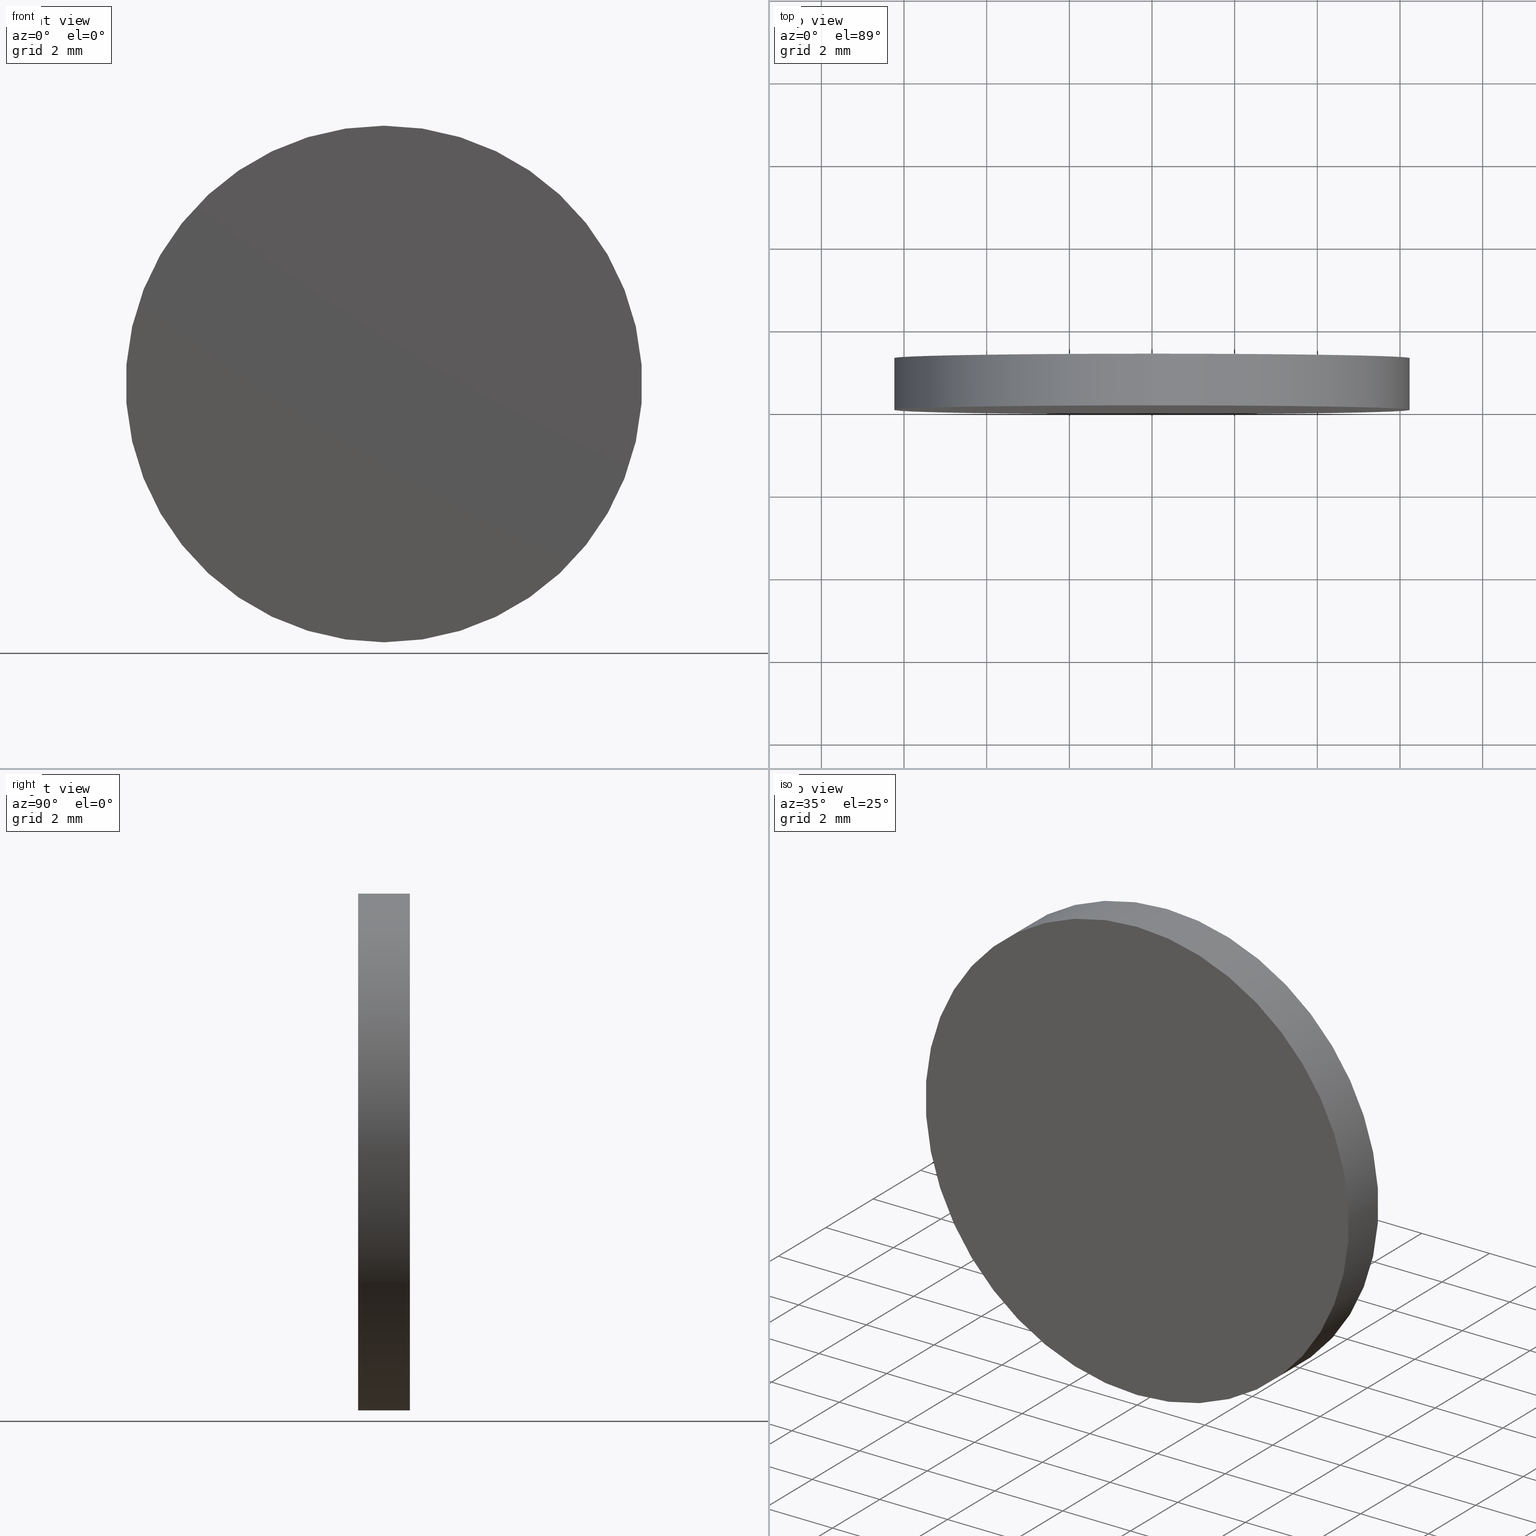
[diagram: canonical four-view strip — front | top / right | iso, engineering-drawing reading convention]
A machine part, canonical four-view strip (front | top / right | iso — engineering-drawing reading convention). The complete STEP part file that produces these views, byte-faithful:
ISO-10303-21;
HEADER;
FILE_DESCRIPTION (( 'STEP AP214' ),
    '1' );
FILE_NAME ('248577.STEP',
    '2019-08-02T08:44:44',
    ( 'user' ),
    ( '΢���й�' ),
    'SwSTEP 2.0',
    'SolidWorks 2016',
    '' );
FILE_SCHEMA (( 'AUTOMOTIVE_DESIGN' ));
ENDSEC;

DATA;
#1 = PRODUCT_DEFINITION ( 'δ֪', '', #97, #43 ) ;
#2 = AXIS2_PLACEMENT_3D ( 'NONE', #27, #109, #19 ) ;
#3 = CARTESIAN_POINT ( 'NONE',  ( 0.0000000000000000000, 0.0000000000000000000, 0.0000000000000000000 ) ) ;
#4 = EDGE_CURVE ( 'NONE', #65, #38, #66, .T. ) ;
#5 = CIRCLE ( 'NONE', #10, 6.250000000000000000 ) ;
#6 = CARTESIAN_POINT ( 'NONE',  ( 0.0000000000000000000, 0.0000000000000000000, 0.0000000000000000000 ) ) ;
#7 = DIRECTION ( 'NONE',  ( 0.0000000000000000000, 0.0000000000000000000, 1.000000000000000000 ) ) ;
#8 = SURFACE_STYLE_USAGE ( .BOTH. , #76 ) ;
#9 = ADVANCED_FACE ( 'NONE', ( #71 ), #44, .T. ) ;
#10 = AXIS2_PLACEMENT_3D ( 'NONE', #138, #75, #7 ) ;
#11 = ORIENTED_EDGE ( 'NONE', *, *, #4, .F. ) ;
#12 = LINE ( 'NONE', #101, #53 ) ;
#13 =( NAMED_UNIT ( * ) SI_UNIT ( $, .STERADIAN. ) SOLID_ANGLE_UNIT ( ) );
#14 = SURFACE_STYLE_USAGE ( .BOTH. , #80 ) ;
#15 = DIRECTION ( 'NONE',  ( -0.0000000000000000000, -1.000000000000000000, -0.0000000000000000000 ) ) ;
#16 = CARTESIAN_POINT ( 'NONE',  ( 7.654042494670957600E-016, 1.250000000000000000, 6.250000000000000000 ) ) ;
#17 = UNCERTAINTY_MEASURE_WITH_UNIT (LENGTH_MEASURE( 1.000000000000000100E-005 ), #87, 'distance_accuracy_value', 'NONE');
#18 = APPLICATION_PROTOCOL_DEFINITION ( 'draft international standard', 'automotive_design', 1998, #61 ) ;
#19 = DIRECTION ( 'NONE',  ( 0.0000000000000000000, 0.0000000000000000000, 1.000000000000000000 ) ) ;
#20 =( NAMED_UNIT ( * ) PLANE_ANGLE_UNIT ( ) SI_UNIT ( $, .RADIAN. ) );
#21 = STYLED_ITEM ( 'NONE', ( #50 ), #25 ) ;
#22 = VERTEX_POINT ( 'NONE', #81 ) ;
#23 = AXIS2_PLACEMENT_3D ( 'NONE', #117, #118, #24 ) ;
#24 = DIRECTION ( 'NONE',  ( 0.0000000000000000000, 0.0000000000000000000, -1.000000000000000000 ) ) ;
#25 = ADVANCED_BREP_SHAPE_REPRESENTATION ( '248577', ( #98, #33 ), #108 ) ;
#26 = DIRECTION ( 'NONE',  ( 0.0000000000000000000, 1.000000000000000000, 0.0000000000000000000 ) ) ;
#27 = CARTESIAN_POINT ( 'NONE',  ( 0.0000000000000000000, 1.250000000000000000, 0.0000000000000000000 ) ) ;
#28 =( LENGTH_UNIT ( ) NAMED_UNIT ( * ) SI_UNIT ( .MILLI., .METRE. ) );
#29 = MECHANICAL_DESIGN_GEOMETRIC_PRESENTATION_REPRESENTATION (  '', ( #21 ), #91 ) ;
#30 = AXIS2_PLACEMENT_3D ( 'NONE', #52, #127, #120 ) ;
#31 = VECTOR ( 'NONE', #125, 1000.000000000000000 ) ;
#32 = EDGE_LOOP ( 'NONE', ( #82, #133, #67, #103 ) ) ;
#33 = AXIS2_PLACEMENT_3D ( 'NONE', #6, #112, #74 ) ;
#34 = EDGE_CURVE ( 'NONE', #38, #65, #77, .T. ) ;
#35 = PLANE ( 'NONE',  #37 ) ;
#36 = FILL_AREA_STYLE_COLOUR ( '', #92 ) ;
#37 = AXIS2_PLACEMENT_3D ( 'NONE', #99, #26, #79 ) ;
#38 = VERTEX_POINT ( 'NONE', #119 ) ;
#39 =( NAMED_UNIT ( * ) SI_UNIT ( $, .STERADIAN. ) SOLID_ANGLE_UNIT ( ) );
#40 = CIRCLE ( 'NONE', #2, 6.250000000000000000 ) ;
#41 = ORIENTED_EDGE ( 'NONE', *, *, #42, .T. ) ;
#42 = EDGE_CURVE ( 'NONE', #22, #65, #90, .T. ) ;
#43 = PRODUCT_DEFINITION_CONTEXT ( 'detailed design', #61, 'design' ) ;
#44 = CYLINDRICAL_SURFACE ( 'NONE', #89, 6.250000000000000000 ) ;
#45 = EDGE_CURVE ( 'NONE', #22, #106, #40, .T. ) ;
#46 = FACE_OUTER_BOUND ( 'NONE', #114, .T. ) ;
#47 = MECHANICAL_DESIGN_GEOMETRIC_PRESENTATION_REPRESENTATION (  '', ( #68 ), #84 ) ;
#48 = PRODUCT ( '248577', '248577', '', ( #137 ) ) ;
#49 = DIRECTION ( 'NONE',  ( 0.0000000000000000000, 0.0000000000000000000, 1.000000000000000000 ) ) ;
#50 = PRESENTATION_STYLE_ASSIGNMENT (( #8 ) ) ;
#51 = AXIS2_PLACEMENT_3D ( 'NONE', #3, #73, #134 ) ;
#52 = CARTESIAN_POINT ( 'NONE',  ( 0.0000000000000000000, 1.250000000000000000, 0.0000000000000000000 ) ) ;
#53 = VECTOR ( 'NONE', #15, 1000.000000000000000 ) ;
#54 = APPLICATION_PROTOCOL_DEFINITION ( 'draft international standard', 'automotive_design', 1998, #64 ) ;
#55 = ORIENTED_EDGE ( 'NONE', *, *, #34, .F. ) ;
#56 = AXIS2_PLACEMENT_3D ( 'NONE', #60, #126, #49 ) ;
#57 = PRESENTATION_STYLE_ASSIGNMENT (( #14 ) ) ;
#58 = FILL_AREA_STYLE ('',( #36 ) ) ;
#59 = CARTESIAN_POINT ( 'NONE',  ( 7.654042494670957600E-016, 0.0000000000000000000, 6.250000000000000000 ) ) ;
#60 = CARTESIAN_POINT ( 'NONE',  ( 0.0000000000000000000, 0.0000000000000000000, 0.0000000000000000000 ) ) ;
#61 = APPLICATION_CONTEXT ( 'automotive_design' ) ;
#62 = CLOSED_SHELL ( 'NONE', ( #104, #9, #128, #88 ) ) ;
#63 = CARTESIAN_POINT ( 'NONE',  ( 0.0000000000000000000, 1.250000000000000000, -6.250000000000000000 ) ) ;
#64 = APPLICATION_CONTEXT ( 'automotive_design' ) ;
#65 = VERTEX_POINT ( 'NONE', #59 ) ;
#66 = CIRCLE ( 'NONE', #56, 6.250000000000000000 ) ;
#67 = ORIENTED_EDGE ( 'NONE', *, *, #132, .T. ) ;
#68 = STYLED_ITEM ( 'NONE', ( #57 ), #98 ) ;
#69 = COLOUR_RGB ( '',1.000000000000000000, 1.000000000000000000, 1.000000000000000000 ) ;
#70 = FACE_OUTER_BOUND ( 'NONE', #129, .T. ) ;
#71 = FACE_OUTER_BOUND ( 'NONE', #32, .T. ) ;
#72 = PRESENTATION_LAYER_ASSIGNMENT (  '', '', ( #21 ) ) ;
#73 = DIRECTION ( 'NONE',  ( 0.0000000000000000000, 1.000000000000000000, 0.0000000000000000000 ) ) ;
#74 = DIRECTION ( 'NONE',  ( 1.000000000000000000, 0.0000000000000000000, 0.0000000000000000000 ) ) ;
#75 = DIRECTION ( 'NONE',  ( 0.0000000000000000000, 1.000000000000000000, 0.0000000000000000000 ) ) ;
#76 = SURFACE_SIDE_STYLE ('',( #135 ) ) ;
#77 = CIRCLE ( 'NONE', #51, 6.250000000000000000 ) ;
#78 = UNCERTAINTY_MEASURE_WITH_UNIT (LENGTH_MEASURE( 1.000000000000000100E-005 ), #95, 'distance_accuracy_value', 'NONE');
#79 = DIRECTION ( 'NONE',  ( 0.0000000000000000000, -0.0000000000000000000, 1.000000000000000000 ) ) ;
#80 = SURFACE_SIDE_STYLE ('',( #110 ) ) ;
#81 = CARTESIAN_POINT ( 'NONE',  ( 7.654042494670957600E-016, 1.250000000000000000, 6.250000000000000000 ) ) ;
#82 = ORIENTED_EDGE ( 'NONE', *, *, #42, .F. ) ;
#83 = DIRECTION ( 'NONE',  ( -0.0000000000000000000, -1.000000000000000000, -0.0000000000000000000 ) ) ;
#84 =( GEOMETRIC_REPRESENTATION_CONTEXT ( 3 ) GLOBAL_UNCERTAINTY_ASSIGNED_CONTEXT ( ( #78 ) ) GLOBAL_UNIT_ASSIGNED_CONTEXT ( ( #95, #94, #13 ) ) REPRESENTATION_CONTEXT ( 'NONE', 'WORKASPACE' ) );
#85 = FILL_AREA_STYLE_COLOUR ( '', #69 ) ;
#86 = CYLINDRICAL_SURFACE ( 'NONE', #23, 6.250000000000000000 ) ;
#87 =( LENGTH_UNIT ( ) NAMED_UNIT ( * ) SI_UNIT ( .MILLI., .METRE. ) );
#88 = ADVANCED_FACE ( 'NONE', ( #70 ), #35, .F. ) ;
#89 = AXIS2_PLACEMENT_3D ( 'NONE', #136, #83, #96 ) ;
#90 = LINE ( 'NONE', #16, #31 ) ;
#91 =( GEOMETRIC_REPRESENTATION_CONTEXT ( 3 ) GLOBAL_UNCERTAINTY_ASSIGNED_CONTEXT ( ( #17 ) ) GLOBAL_UNIT_ASSIGNED_CONTEXT ( ( #87, #20, #102 ) ) REPRESENTATION_CONTEXT ( 'NONE', 'WORKASPACE' ) );
#92 = COLOUR_RGB ( '',1.000000000000000000, 1.000000000000000000, 1.000000000000000000 ) ;
#93 = PRESENTATION_LAYER_ASSIGNMENT (  '', '', ( #68 ) ) ;
#94 =( NAMED_UNIT ( * ) PLANE_ANGLE_UNIT ( ) SI_UNIT ( $, .RADIAN. ) );
#95 =( LENGTH_UNIT ( ) NAMED_UNIT ( * ) SI_UNIT ( .MILLI., .METRE. ) );
#96 = DIRECTION ( 'NONE',  ( 0.0000000000000000000, 0.0000000000000000000, -1.000000000000000000 ) ) ;
#97 = PRODUCT_DEFINITION_FORMATION_WITH_SPECIFIED_SOURCE ( '�κ�', '', #48, .NOT_KNOWN. ) ;
#98 = MANIFOLD_SOLID_BREP ( '͹̨-����1', #62 ) ;
#99 = CARTESIAN_POINT ( 'NONE',  ( 0.0000000000000000000, 0.0000000000000000000, 0.0000000000000000000 ) ) ;
#100 = EDGE_LOOP ( 'NONE', ( #130, #41, #140, #116 ) ) ;
#101 = CARTESIAN_POINT ( 'NONE',  ( 0.0000000000000000000, 1.250000000000000000, -6.250000000000000000 ) ) ;
#102 =( NAMED_UNIT ( * ) SI_UNIT ( $, .STERADIAN. ) SOLID_ANGLE_UNIT ( ) );
#103 = ORIENTED_EDGE ( 'NONE', *, *, #34, .T. ) ;
#104 = ADVANCED_FACE ( 'NONE', ( #121 ), #86, .T. ) ;
#105 = ORIENTED_EDGE ( 'NONE', *, *, #45, .T. ) ;
#106 = VERTEX_POINT ( 'NONE', #63 ) ;
#107 = SHAPE_DEFINITION_REPRESENTATION ( #123, #25 ) ;
#108 =( GEOMETRIC_REPRESENTATION_CONTEXT ( 3 ) GLOBAL_UNCERTAINTY_ASSIGNED_CONTEXT ( ( #115 ) ) GLOBAL_UNIT_ASSIGNED_CONTEXT ( ( #28, #111, #39 ) ) REPRESENTATION_CONTEXT ( 'NONE', 'WORKASPACE' ) );
#109 = DIRECTION ( 'NONE',  ( 0.0000000000000000000, 1.000000000000000000, 0.0000000000000000000 ) ) ;
#110 = SURFACE_STYLE_FILL_AREA ( #58 ) ;
#111 =( NAMED_UNIT ( * ) PLANE_ANGLE_UNIT ( ) SI_UNIT ( $, .RADIAN. ) );
#112 = DIRECTION ( 'NONE',  ( 0.0000000000000000000, 0.0000000000000000000, 1.000000000000000000 ) ) ;
#113 = PRODUCT_RELATED_PRODUCT_CATEGORY ( 'part', '', ( #48 ) ) ;
#114 = EDGE_LOOP ( 'NONE', ( #122, #105 ) ) ;
#115 = UNCERTAINTY_MEASURE_WITH_UNIT (LENGTH_MEASURE( 1.000000000000000100E-005 ), #28, 'distance_accuracy_value', 'NONE');
#116 = ORIENTED_EDGE ( 'NONE', *, *, #132, .F. ) ;
#117 = CARTESIAN_POINT ( 'NONE',  ( 0.0000000000000000000, 1.250000000000000000, 0.0000000000000000000 ) ) ;
#118 = DIRECTION ( 'NONE',  ( -0.0000000000000000000, -1.000000000000000000, -0.0000000000000000000 ) ) ;
#119 = CARTESIAN_POINT ( 'NONE',  ( 0.0000000000000000000, 0.0000000000000000000, -6.250000000000000000 ) ) ;
#120 = DIRECTION ( 'NONE',  ( 0.0000000000000000000, -0.0000000000000000000, 1.000000000000000000 ) ) ;
#121 = FACE_OUTER_BOUND ( 'NONE', #100, .T. ) ;
#122 = ORIENTED_EDGE ( 'NONE', *, *, #131, .T. ) ;
#123 = PRODUCT_DEFINITION_SHAPE ( 'NONE', 'NONE',  #1 ) ;
#124 = PLANE ( 'NONE',  #30 ) ;
#125 = DIRECTION ( 'NONE',  ( -0.0000000000000000000, -1.000000000000000000, -0.0000000000000000000 ) ) ;
#126 = DIRECTION ( 'NONE',  ( 0.0000000000000000000, 1.000000000000000000, 0.0000000000000000000 ) ) ;
#127 = DIRECTION ( 'NONE',  ( 0.0000000000000000000, 1.000000000000000000, 0.0000000000000000000 ) ) ;
#128 = ADVANCED_FACE ( 'NONE', ( #46 ), #124, .T. ) ;
#129 = EDGE_LOOP ( 'NONE', ( #55, #11 ) ) ;
#130 = ORIENTED_EDGE ( 'NONE', *, *, #45, .F. ) ;
#131 = EDGE_CURVE ( 'NONE', #106, #22, #5, .T. ) ;
#132 = EDGE_CURVE ( 'NONE', #106, #38, #12, .T. ) ;
#133 = ORIENTED_EDGE ( 'NONE', *, *, #131, .F. ) ;
#134 = DIRECTION ( 'NONE',  ( 0.0000000000000000000, 0.0000000000000000000, 1.000000000000000000 ) ) ;
#135 = SURFACE_STYLE_FILL_AREA ( #139 ) ;
#136 = CARTESIAN_POINT ( 'NONE',  ( 0.0000000000000000000, 1.250000000000000000, 0.0000000000000000000 ) ) ;
#137 = PRODUCT_CONTEXT ( 'NONE', #64, 'mechanical' ) ;
#138 = CARTESIAN_POINT ( 'NONE',  ( 0.0000000000000000000, 1.250000000000000000, 0.0000000000000000000 ) ) ;
#139 = FILL_AREA_STYLE ('',( #85 ) ) ;
#140 = ORIENTED_EDGE ( 'NONE', *, *, #4, .T. ) ;
ENDSEC;
END-ISO-10303-21;
